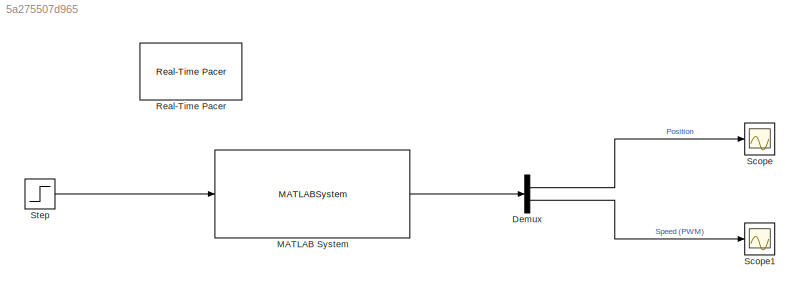
MODEL slx_5a275507d965
KIND model
CONFIG AbsTol = auto
CONFIG EnableMultiTasking = off
CONFIG FixedStep = 0.1
CONFIG MaxStep = auto
CONFIG MinStep = auto
CONFIG RelTol = 1e-3
CONFIG SampleTimeConstraint = Unconstrained
CONFIG SolverName = FixedStepAuto
CONFIG StartTime = 0.0
CONFIG StopTime = 10.0
BLOCK [Demux] Demux
  Outputs = 2
BLOCK [MATLABSystem] MATLAB System
  MaskDisplay = disp('LegoEV3Brick');\nport_label('input',1,'SpeedInput');\nport_label('output',1,'motorout');
  MaskType = LegoEV3Brick
  SimulateUsing = Interpreted execution
  System = LegoEV3Brick
  address = 192.168.87.151
  id = 0016534cde97
  motorport = A
BLOCK [Reference] Real-Time Pacer  REF=realtime_pacer_lib/Real-Time Pacer
  SourceBlock = realtime_pacer_lib/Real-Time Pacer
  SourceType = RealTime_Pacer
BLOCK [Scope] Scope
  Floating = off
  NumInputPorts = 1
  ScopeSpecificationString = Simulink.scopes.TimeScopeBlockCfg('CurrentConfiguration', extmgr.ConfigurationSet(extmgr.Configuration('Core','General UI',true),extmgr.Configuration('Core','Source UI',true),extmgr.Configuration('Sources','WiredSimulink',true),extmgr.Configuration('Visuals','Time Domain',true,'SerializedDisplays',{struct('MinYLimReal','7552.125','MaxYLimReal','12280.875','YLabelReal','','MinYLimMag','7552.125','M...<+1393ch>
BLOCK [Scope] Scope1
  Floating = off
  NumInputPorts = 1
  ScopeSpecificationString = Simulink.scopes.TimeScopeBlockCfg('CurrentConfiguration', extmgr.ConfigurationSet(extmgr.Configuration('Core','General UI',true),extmgr.Configuration('Core','Source UI',true),extmgr.Configuration('Sources','WiredSimulink',true,'DataLoggingVariableName','ScopeData1'),extmgr.Configuration('Visuals','Time Domain',true,'SerializedDisplays',{struct('MinYLimReal','-12.5','MaxYLimReal','112.5','YLabelRea...<+1411ch>
BLOCK [Step] Step
  After = -100
  Before = 100
  Time = 5
LINE Demux:1 -> Scope:1
LINE Demux:2 -> Scope1:1
LINE MATLAB System:1 -> Demux:1
LINE Step:1 -> MATLAB System:1
